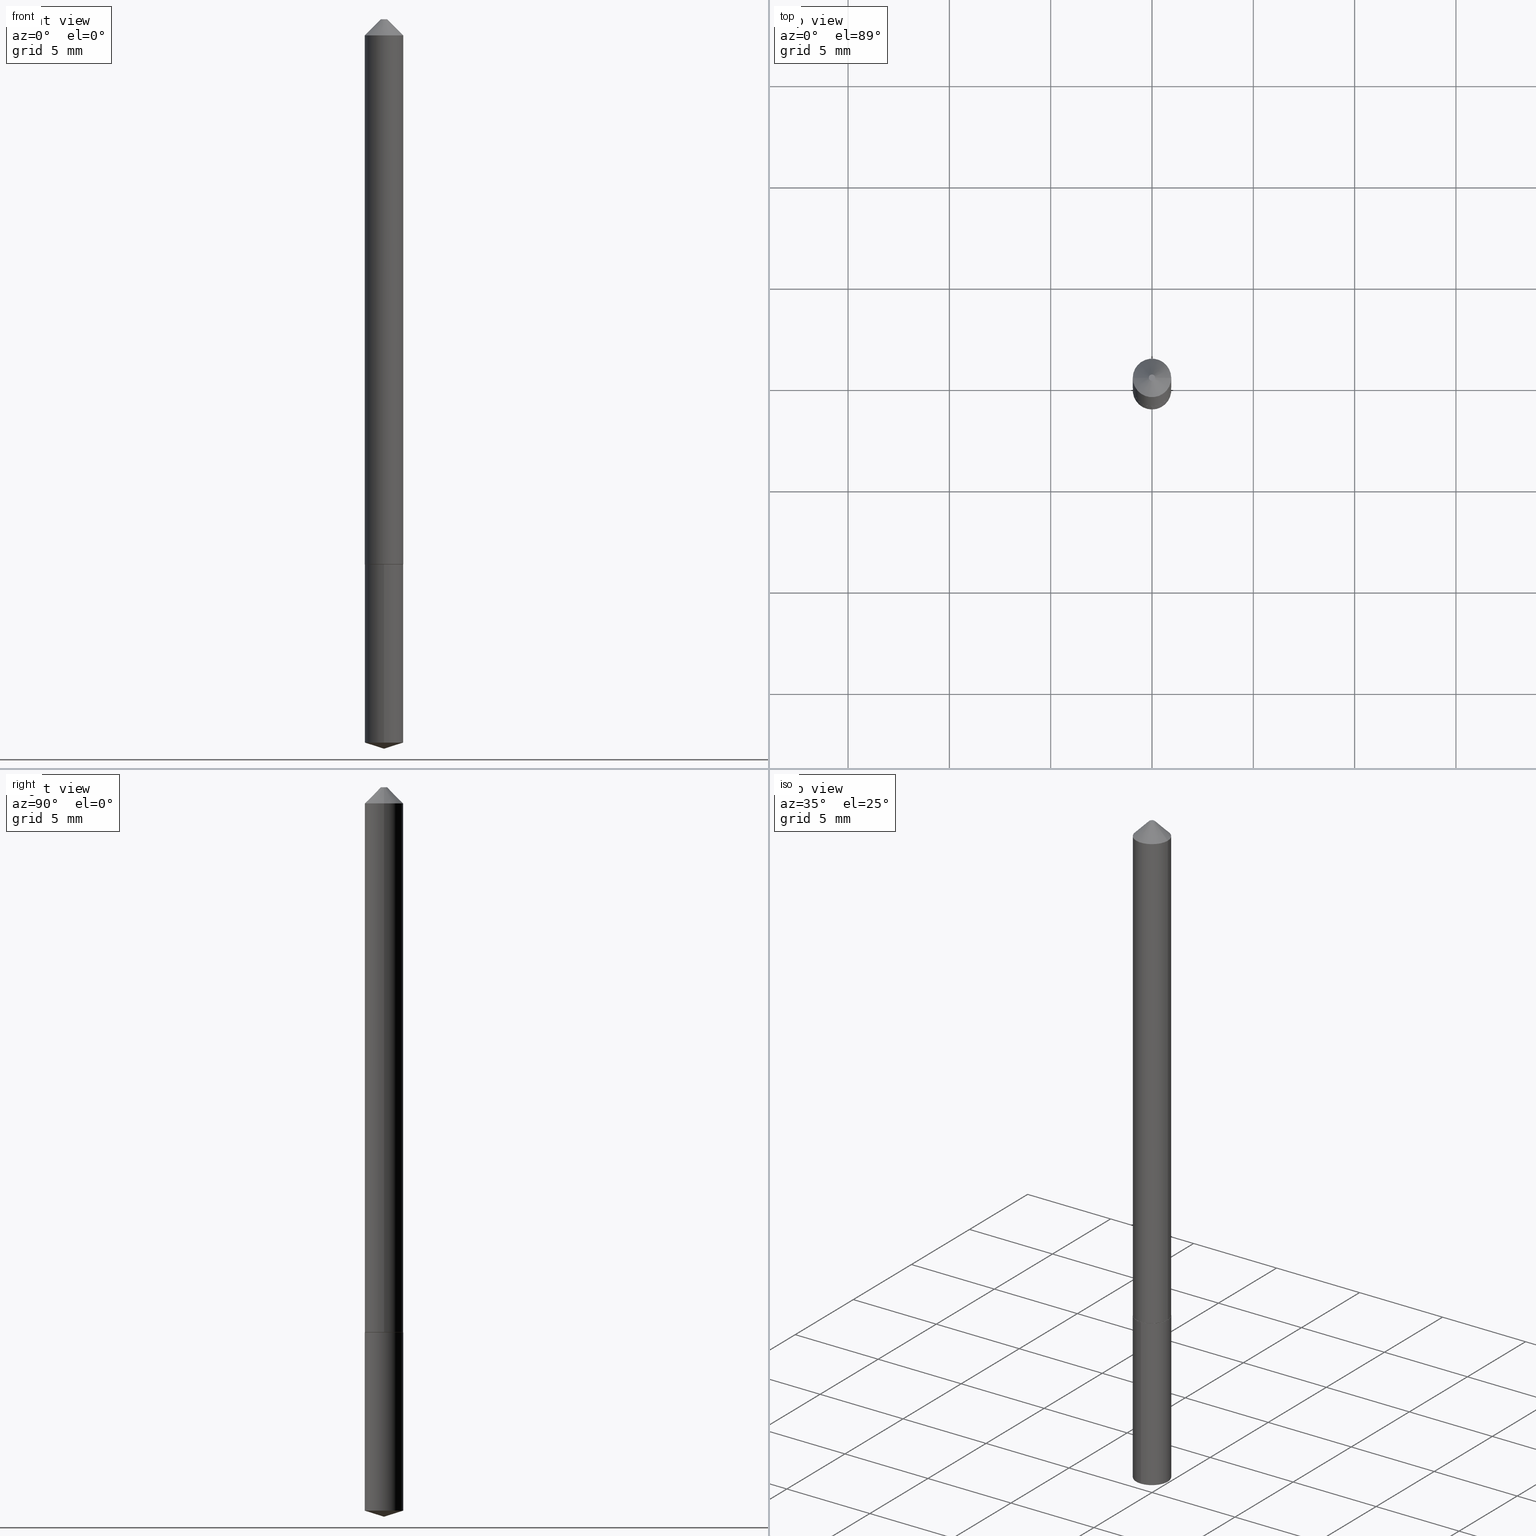
[diagram: canonical four-view strip — front | top / right | iso, engineering-drawing reading convention]
A machine part, canonical four-view strip (front | top / right | iso — engineering-drawing reading convention). The complete STEP part file that produces these views, byte-faithful:
ISO-10303-21;
HEADER;
FILE_DESCRIPTION (( 'STEP AP203' ),
    '1' );
FILE_NAME ('68667.STEP',
    '2024-04-23T13:29:23',
    ( '' ),
    ( '' ),
    'SwSTEP 2.0',
    'SolidWorks 2023',
    '' );
FILE_SCHEMA (( 'CONFIG_CONTROL_DESIGN' ));
ENDSEC;

DATA;
#1 = VECTOR ( 'NONE', #14, 39.37007874015748143 ) ;
#2 = DIRECTION ( 'NONE',  ( -2.445468806185136877E-29, 3.491481338843145188E-15, 1.000000000000000000 ) ) ;
#3 = ORIENTED_EDGE ( 'NONE', *, *, #24, .F. ) ;
#4 = ORIENTED_EDGE ( 'NONE', *, *, #202, .F. ) ;
#5 = EDGE_CURVE ( 'NONE', #232, #212, #334, .T. ) ;
#6 = PERSON_AND_ORGANIZATION_ROLE ( 'classification_officer' ) ;
#7 = FACE_OUTER_BOUND ( 'NONE', #186, .T. ) ;
#8 = APPROVAL_PERSON_ORGANIZATION ( #269, #351, #298 ) ;
#9 = ORIENTED_EDGE ( 'NONE', *, *, #223, .F. ) ;
#10 = AXIS2_PLACEMENT_3D ( 'NONE', #219, #229, #250 ) ;
#11 = ORIENTED_EDGE ( 'NONE', *, *, #385, .F. ) ;
#12 = EDGE_CURVE ( 'NONE', #232, #271, #311, .T. ) ;
#13 = ORIENTED_EDGE ( 'NONE', *, *, #272, .F. ) ;
#14 = DIRECTION ( 'NONE',  ( -2.445349578750907731E-29, 3.491652079314965288E-15, 1.000000000000000000 ) ) ;
#15 = CARTESIAN_POINT ( 'NONE',  ( 7.642090019328601786E-31, -1.091087918388490144E-16, -0.03125000000000020123 ) ) ;
#16 = FACE_OUTER_BOUND ( 'NONE', #40, .T. ) ;
#17 = CARTESIAN_POINT ( 'NONE',  ( 3.437084230371345260E-29, -4.907363506528318895E-15, -1.405507825295926105 ) ) ;
#18 = PRODUCT_RELATED_PRODUCT_CATEGORY ( 'detail', '', ( #20 ) ) ;
#19 = CARTESIAN_POINT ( 'NONE',  ( 2.588528731346966904E-29, -3.695732997165469783E-15, -1.058499999999999996 ) ) ;
#20 = PRODUCT ( '68667', '68667', '', ( #235 ) ) ;
#21 = DIRECTION ( 'NONE',  ( -2.445349578750907731E-29, 3.491652079314965682E-15, 1.000000000000000000 ) ) ;
#22 = FACE_OUTER_BOUND ( 'NONE', #94, .T. ) ;
#23 = DATE_AND_TIME ( #128, #148 ) ;
#24 = EDGE_CURVE ( 'NONE', #41, #289, #222, .T. ) ;
#25 = DIRECTION ( 'NONE',  ( -0.7071067811865452413, 2.468850131082233000E-15, -0.7071067811865497932 ) ) ;
#26 = CARTESIAN_POINT ( 'NONE',  ( 2.589751465750059705E-29, -3.697478737834891287E-15, -1.058999999999999941 ) ) ;
#27 = EDGE_CURVE ( 'NONE', #212, #271, #380, .T. ) ;
#28 = ORIENTED_EDGE ( 'NONE', *, *, #12, .T. ) ;
#29 = AXIS2_PLACEMENT_3D ( 'NONE', #367, #61, #123 ) ;
#30 = MANIFOLD_SOLID_BREP ( 'Body-Move/Copy2[2]', #170 ) ;
#31 = ADVANCED_FACE ( 'NONE', ( #136 ), #140, .T. ) ;
#32 = CIRCLE ( 'NONE', #108, 0.03739999999999999575 ) ;
#33 = FACE_OUTER_BOUND ( 'NONE', #130, .T. ) ;
#34 = ORIENTED_EDGE ( 'NONE', *, *, #138, .T. ) ;
#35 = APPROVAL_DATE_TIME ( #301, #351 ) ;
#36 = CARTESIAN_POINT ( 'NONE',  ( -9.280768524281765548E-28, 1.325180796180113527E-13, 37.95277874015748409 ) ) ;
#37 = ORIENTED_EDGE ( 'NONE', *, *, #5, .T. ) ;
#38 = CARTESIAN_POINT ( 'NONE',  ( 3.465793957963661229E-29, -4.948718492013100408E-15, -1.417300000000000004 ) ) ;
#39 = PRODUCT_DEFINITION_FORMATION_WITH_SPECIFIED_SOURCE ( 'ANY', '', #20, .NOT_KNOWN. ) ;
#40 = EDGE_LOOP ( 'NONE', ( #95, #9, #274, #70 ) ) ;
#41 = VERTEX_POINT ( 'NONE', #286 ) ;
#42 = ORIENTED_EDGE ( 'NONE', *, *, #326, .T. ) ;
#43 = CIRCLE ( 'NONE', #52, 0.03690000000000009245 ) ;
#44 = LINE ( 'NONE', #83, #1 ) ;
#45 = CC_DESIGN_APPROVAL ( #351, ( #125 ) ) ;
#46 = DIRECTION ( 'NONE',  ( -6.982962677686265922E-15, -1.000000000000000000, 0.000000000000000000 ) ) ;
#47 = DIRECTION ( 'NONE',  ( -1.000000000000000000, 6.982962677686266711E-15, 0.000000000000000000 ) ) ;
#48 = CC_DESIGN_DATE_AND_TIME_ASSIGNMENT ( #49, #137, ( #125 ) ) ;
#49 = DATE_AND_TIME ( #273, #203 ) ;
#50 = CARTESIAN_POINT ( 'NONE',  ( -2.919964657261593174E-48, 4.168935659749548932E-34, 1.194030629168669478E-19 ) ) ;
#51 = CARTESIAN_POINT ( 'NONE',  ( 2.589751465750059705E-29, -3.697478737834891287E-15, -1.058999999999999941 ) ) ;
#52 = AXIS2_PLACEMENT_3D ( 'NONE', #382, #350, #166 ) ;
#53 = LOCAL_TIME ( 9, 29, 23.00000000000000000, #361 ) ;
#54 = DATE_AND_TIME ( #78, #290 ) ;
#55 = DIRECTION ( 'NONE',  ( -2.445349578750907731E-29, 3.491652079314965682E-15, 1.000000000000000000 ) ) ;
#56 = CARTESIAN_POINT ( 'NONE',  ( -0.03740000000000000269, 1.520540123066173982E-16, -0.03125000000000020123 ) ) ;
#57 = CIRCLE ( 'NONE', #139, 0.03740000000000000269 ) ;
#58 = EDGE_CURVE ( 'NONE', #271, #212, #32, .T. ) ;
#59 = ORIENTED_EDGE ( 'NONE', *, *, #102, .F. ) ;
#60 = PERSON_AND_ORGANIZATION ( #375, #164 ) ;
#61 = DIRECTION ( 'NONE',  ( 0.000000000000000000, 0.000000000000000000, 1.000000000000000000 ) ) ;
#62 = ORIENTED_EDGE ( 'NONE', *, *, #201, .F. ) ;
#63 = PERSON_AND_ORGANIZATION_ROLE ( 'design_owner' ) ;
#64 = ADVANCED_FACE ( 'NONE', ( #251 ), #320, .T. ) ;
#65 = CARTESIAN_POINT ( 'NONE',  ( 5.327136254793541416E-29, 2.226120823418634659E-16, -1.058999999999999719 ) ) ;
#66 = EDGE_CURVE ( 'NONE', #212, #185, #44, .T. ) ;
#67 = CARTESIAN_POINT ( 'NONE',  ( 3.466048696004176320E-29, -4.948356863693786343E-15, -1.417300000000000004 ) ) ;
#68 = PERSON_AND_ORGANIZATION ( #375, #164 ) ;
#69 = PERSON_AND_ORGANIZATION ( #375, #164 ) ;
#70 = ORIENTED_EDGE ( 'NONE', *, *, #102, .T. ) ;
#71 = VERTEX_POINT ( 'NONE', #165 ) ;
#72 = CC_DESIGN_PERSON_AND_ORGANIZATION_ASSIGNMENT ( #69, #184, ( #125 ) ) ;
#73 = CARTESIAN_POINT ( 'NONE',  ( 0.03740000000000000269, -3.702715959843154023E-16, -0.03125000000000020123 ) ) ;
#74 = DIRECTION ( 'NONE',  ( -2.445468806185136597E-29, 3.491481338843145583E-15, 1.000000000000000000 ) ) ;
#75 = CC_DESIGN_APPROVAL ( #293, ( #39 ) ) ;
#76 = LINE ( 'NONE', #228, #353 ) ;
#77 = CARTESIAN_POINT ( 'NONE',  ( 2.589751465750059705E-29, -3.697478737834891287E-15, -1.058999999999999941 ) ) ;
#78 = CALENDAR_DATE ( 2024, 23, 4 ) ;
#79 = DIRECTION ( 'NONE',  ( -6.982962677686265922E-15, -1.000000000000000000, 3.652203200085913145E-15 ) ) ;
#80 = DIRECTION ( 'NONE',  ( 1.000000000000000000, -6.982962677686263555E-15, 0.000000000000000000 ) ) ;
#81 = DIRECTION ( 'NONE',  ( 1.000000000000000000, -6.982962677686263555E-15, 0.000000000000000000 ) ) ;
#82 = FACE_OUTER_BOUND ( 'NONE', #129, .T. ) ;
#83 = CARTESIAN_POINT ( 'NONE',  ( 2.657429831743033238E-16, 0.03739999999999630426, -1.059000000000000163 ) ) ;
#84 = AXIS2_PLACEMENT_3D ( 'NONE', #199, #287, #105 ) ;
#85 = CARTESIAN_POINT ( 'NONE',  ( -5.839929314523186348E-48, 8.337871319499097864E-34, 2.388061258337338955E-19 ) ) ;
#86 = UNCERTAINTY_MEASURE_WITH_UNIT (LENGTH_MEASURE( 1.000000000000000082E-05 ), #324, 'distance_accuracy_value', 'NONE');
#87 = ORIENTED_EDGE ( 'NONE', *, *, #201, .T. ) ;
#88 = DIRECTION ( 'NONE',  ( -2.445349578750907731E-29, 3.491652079314965682E-15, 1.000000000000000000 ) ) ;
#89 = APPROVAL_DATE_TIME ( #54, #370 ) ;
#90 = CARTESIAN_POINT ( 'NONE',  ( 0.03740000000000000269, -3.656914169555043632E-16, -0.03125000000000020123 ) ) ;
#91 = SECURITY_CLASSIFICATION ( '', '', #297 ) ;
#92 = CC_DESIGN_PERSON_AND_ORGANIZATION_ASSIGNMENT ( #215, #327, ( #39 ) ) ;
#93 = FACE_OUTER_BOUND ( 'NONE', #371, .T. ) ;
#94 = EDGE_LOOP ( 'NONE', ( #338, #267 ) ) ;
#95 = ORIENTED_EDGE ( 'NONE', *, *, #288, .F. ) ;
#96 = ORIENTED_EDGE ( 'NONE', *, *, #24, .T. ) ;
#97 = CARTESIAN_POINT ( 'NONE',  ( -2.611628041454319369E-16, -0.03740000000000490155, -1.405507825295926105 ) ) ;
#98 = EDGE_LOOP ( 'NONE', ( #161, #214, #62, #4 ) ) ;
#99 = AXIS2_PLACEMENT_3D ( 'NONE', #192, #230, #343 ) ;
#100 = ORIENTED_EDGE ( 'NONE', *, *, #263, .T. ) ;
#101 = DIRECTION ( 'NONE',  ( 1.000000000000000000, -6.982962677686266711E-15, 0.000000000000000000 ) ) ;
#102 = EDGE_CURVE ( 'NONE', #71, #175, #118, .T. ) ;
#103 = FACE_OUTER_BOUND ( 'NONE', #276, .T. ) ;
#104 = PERSON_AND_ORGANIZATION ( #375, #164 ) ;
#105 = DIRECTION ( 'NONE',  ( 1.000000000000000000, -6.982962677686263555E-15, 0.000000000000000000 ) ) ;
#106 = DIRECTION ( 'NONE',  ( 1.000000000000000000, -6.982962677686263555E-15, 0.000000000000000000 ) ) ;
#107 = CARTESIAN_POINT ( 'NONE',  ( -0.03740000000000013453, -3.429990013991191210E-15, -1.058499999999999996 ) ) ;
#108 = AXIS2_PLACEMENT_3D ( 'NONE', #171, #317, #348 ) ;
#109 = DIRECTION ( 'NONE',  ( 2.445468806185136597E-29, -3.491481338843145583E-15, -1.000000000000000000 ) ) ;
#110 = AXIS2_PLACEMENT_3D ( 'NONE', #65, #180, #253 ) ;
#111 = CARTESIAN_POINT ( 'NONE',  ( -0.03690000000000009245, -3.432639241165302411E-15, -1.058999999999999719 ) ) ;
#112 = CARTESIAN_POINT ( 'NONE',  ( -0.03740000000000013453, -3.429990013991191210E-15, -1.058499999999999996 ) ) ;
#113 = CYLINDRICAL_SURFACE ( 'NONE', #99, 0.03740000000000007208 ) ;
#114 = DIRECTION ( 'NONE',  ( 1.000000000000000000, -6.982962677686266711E-15, 0.000000000000000000 ) ) ;
#115 = PERSON_AND_ORGANIZATION ( #375, #164 ) ;
#116 = AXIS2_PLACEMENT_3D ( 'NONE', #295, #302, #106 ) ;
#117 = ORIENTED_EDGE ( 'NONE', *, *, #272, .T. ) ;
#118 = CIRCLE ( 'NONE', #306, 0.03740000000000000269 ) ;
#119 = VECTOR ( 'NONE', #378, 39.37007874015748143 ) ;
#120 = EDGE_CURVE ( 'NONE', #175, #71, #57, .T. ) ;
#121 = DIRECTION ( 'NONE',  ( -2.445468806185136597E-29, 3.491481338843145583E-15, 1.000000000000000000 ) ) ;
#122 = ORIENTED_EDGE ( 'NONE', *, *, #288, .T. ) ;
#123 = DIRECTION ( 'NONE',  ( 1.000000000000000000, 0.000000000000000000, 0.000000000000000000 ) ) ;
#124 = ORIENTED_EDGE ( 'NONE', *, *, #120, .F. ) ;
#125 = PRODUCT_DEFINITION ( 'UNKNOWN', '', #39, #299 ) ;
#126 = CIRCLE ( 'NONE', #158, 0.03740000000000000269 ) ;
#127 = VERTEX_POINT ( 'NONE', #278 ) ;
#128 = CALENDAR_DATE ( 2024, 23, 4 ) ;
#129 = EDGE_LOOP ( 'NONE', ( #360, #237, #3, #179 ) ) ;
#130 = EDGE_LOOP ( 'NONE', ( #308, #207 ) ) ;
#131 = APPROVAL_ROLE ( '' ) ;
#132 = CIRCLE ( 'NONE', #291, 0.03740000000000000269 ) ;
#133 = AXIS2_PLACEMENT_3D ( 'NONE', #143, #257, #80 ) ;
#134 = CARTESIAN_POINT ( 'NONE',  ( 7.642090019328601786E-31, -1.091087918388490144E-16, -0.03125000000000020123 ) ) ;
#135 = DIRECTION ( 'NONE',  ( -6.659769872151635244E-15, -0.9537169507482271547, 0.3007057995042720644 ) ) ;
#136 = FACE_OUTER_BOUND ( 'NONE', #98, .T. ) ;
#137 = DATE_TIME_ROLE ( 'creation_date' ) ;
#138 = EDGE_CURVE ( 'NONE', #304, #242, #195, .T. ) ;
#139 = AXIS2_PLACEMENT_3D ( 'NONE', #134, #281, #114 ) ;
#140 = CYLINDRICAL_SURFACE ( 'NONE', #345, 0.03739999999999999575 ) ;
#141 = CONICAL_SURFACE ( 'NONE', #342, 124.8659371009158576, 1.265363707695893458 ) ;
#142 = DIRECTION ( 'NONE',  ( -6.982962677686265922E-15, -1.000000000000000000, 3.652203200085913934E-15 ) ) ;
#143 = CARTESIAN_POINT ( 'NONE',  ( 2.588528731346966904E-29, -3.695732997165469783E-15, -1.058499999999999996 ) ) ;
#144 = EDGE_CURVE ( 'NONE', #242, #304, #43, .T. ) ;
#145 = CONICAL_SURFACE ( 'NONE', #133, 0.03740000000000013453, 0.7853981633975933851 ) ;
#146 = CALENDAR_DATE ( 2024, 23, 4 ) ;
#147 = AXIS2_PLACEMENT_3D ( 'NONE', #15, #109, #47 ) ;
#148 = LOCAL_TIME ( 9, 29, 23.00000000000000000, #240 ) ;
#149 = CARTESIAN_POINT ( 'NONE',  ( -2.611628041454404664E-16, -0.03740000000000370112, -1.058999999999999719 ) ) ;
#150 = APPLICATION_PROTOCOL_DEFINITION ( 'international standard', 'config_control_design', 1994, #339 ) ;
#151 = EDGE_CURVE ( 'NONE', #304, #289, #322, .T. ) ;
#152 = CARTESIAN_POINT ( 'NONE',  ( -5.839929314523186348E-48, 8.337871319499097864E-34, 2.388061258337338955E-19 ) ) ;
#153 = ORIENTED_EDGE ( 'NONE', *, *, #303, .F. ) ;
#154 = PLANE ( 'NONE',  #110 ) ;
#155 = ORIENTED_EDGE ( 'NONE', *, *, #275, .T. ) ;
#156 = DATE_AND_TIME ( #146, #262 ) ;
#157 = AXIS2_PLACEMENT_3D ( 'NONE', #51, #21, #142 ) ;
#158 = AXIS2_PLACEMENT_3D ( 'NONE', #77, #88, #198 ) ;
#159 = EDGE_LOOP ( 'NONE', ( #366, #28, #356 ) ) ;
#160 = COORDINATED_UNIVERSAL_TIME_OFFSET ( 5, 0, .BEHIND. ) ;
#161 = ORIENTED_EDGE ( 'NONE', *, *, #58, .T. ) ;
#162 = ORIENTED_EDGE ( 'NONE', *, *, #27, .T. ) ;
#163 = AXIS2_PLACEMENT_3D ( 'NONE', #225, #168, #173 ) ;
#164 = ORGANIZATION ( 'UNSPECIFIED', 'UNSPECIFIED', '' ) ;
#165 = CARTESIAN_POINT ( 'NONE',  ( -0.03740000000000000269, -1.636677911327879883E-15, -0.03125000000000020123 ) ) ;
#166 = DIRECTION ( 'NONE',  ( 1.000000000000000000, -6.982962677686270655E-15, 0.000000000000000000 ) ) ;
#167 = APPROVAL_ROLE ( '' ) ;
#168 = DIRECTION ( 'NONE',  ( -2.445349578750907731E-29, 3.491652079314965682E-15, 1.000000000000000000 ) ) ;
#169 = CC_DESIGN_DATE_AND_TIME_ASSIGNMENT ( #23, #319, ( #91 ) ) ;
#170 = CLOSED_SHELL ( 'NONE', ( #174, #197, #325, #244, #318, #310, #234, #321 ) ) ;
#171 = CARTESIAN_POINT ( 'NONE',  ( 3.437084230371345260E-29, -4.907363506528318895E-15, -1.405507825295926105 ) ) ;
#172 = AXIS2_PLACEMENT_3D ( 'NONE', #50, #221, #323 ) ;
#173 = DIRECTION ( 'NONE',  ( -6.982962677686266711E-15, -1.000000000000000000, 3.500519750498682344E-15 ) ) ;
#174 = ADVANCED_FACE ( 'NONE', ( #227 ), #261, .T. ) ;
#175 = VERTEX_POINT ( 'NONE', #73 ) ;
#176 = APPROVAL_STATUS ( 'not_yet_approved' ) ;
#177 = AXIS2_PLACEMENT_3D ( 'NONE', #211, #368, #238 ) ;
#178 = ADVANCED_FACE ( 'NONE', ( #376 ), #249, .T. ) ;
#179 = ORIENTED_EDGE ( 'NONE', *, *, #326, .F. ) ;
#180 = DIRECTION ( 'NONE',  ( -2.438088387897960049E-29, 3.491481338843145188E-15, 1.000000000000000000 ) ) ;
#181 = ORIENTED_EDGE ( 'NONE', *, *, #202, .T. ) ;
#182 = DIRECTION ( 'NONE',  ( 6.776566513254261293E-15, 0.9537169507482292641, 0.3007057995042654586 ) ) ;
#183 = VECTOR ( 'NONE', #254, 39.37007874015748854 ) ;
#184 = PERSON_AND_ORGANIZATION_ROLE ( 'creator' ) ;
#185 = VERTEX_POINT ( 'NONE', #187 ) ;
#186 = EDGE_LOOP ( 'NONE', ( #87, #305 ) ) ;
#187 = CARTESIAN_POINT ( 'NONE',  ( 2.657429831743119027E-16, 0.03739999999999631120, -1.059000000000000163 ) ) ;
#188 = VECTOR ( 'NONE', #135, 39.37007874015748854 ) ;
#189 = AXIS2_PLACEMENT_3D ( 'NONE', #26, #280, #233 ) ;
#190 = FACE_OUTER_BOUND ( 'NONE', #264, .T. ) ;
#191 = DIRECTION ( 'NONE',  ( -6.982962677686265922E-15, -1.000000000000000000, 3.652203200085913934E-15 ) ) ;
#192 = CARTESIAN_POINT ( 'NONE',  ( 0.000000000000000000, 0.000000000000000000, 0.000000000000000000 ) ) ;
#193 = DIRECTION ( 'NONE',  ( -2.445468806185136597E-29, 3.491481338843145583E-15, 1.000000000000000000 ) ) ;
#194 = DIRECTION ( 'NONE',  ( 1.000000000000000000, -6.982962677686266711E-15, 4.876258493904629088E-29 ) ) ;
#195 = CIRCLE ( 'NONE', #10, 0.03690000000000009245 ) ;
#196 = CARTESIAN_POINT ( 'NONE',  ( 7.642090019328601786E-31, -1.091087918388490144E-16, -0.03125000000000020123 ) ) ;
#197 = ADVANCED_FACE ( 'NONE', ( #103 ), #220, .T. ) ;
#198 = DIRECTION ( 'NONE',  ( -6.982962677686265922E-15, -1.000000000000000000, 3.652203200085913145E-15 ) ) ;
#199 = CARTESIAN_POINT ( 'NONE',  ( 2.588528731346966904E-29, -3.695732997165469783E-15, -1.058499999999999996 ) ) ;
#200 = SHAPE_DEFINITION_REPRESENTATION ( #277, #292 ) ;
#201 = EDGE_CURVE ( 'NONE', #246, #185, #132, .T. ) ;
#202 = EDGE_CURVE ( 'NONE', #271, #246, #365, .T. ) ;
#203 = LOCAL_TIME ( 9, 29, 23.00000000000000000, #160 ) ;
#204 = PERSON_AND_ORGANIZATION ( #375, #164 ) ;
#205 = CC_DESIGN_PERSON_AND_ORGANIZATION_ASSIGNMENT ( #60, #6, ( #91 ) ) ;
#206 = DIRECTION ( 'NONE',  ( -2.445349578750907731E-29, 3.491652079314965682E-15, 1.000000000000000000 ) ) ;
#207 = ORIENTED_EDGE ( 'NONE', *, *, #138, .F. ) ;
#208 = CIRCLE ( 'NONE', #337, 0.006150000000000001819 ) ;
#209 = APPROVAL_DATE_TIME ( #156, #293 ) ;
#210 =( GEOMETRIC_REPRESENTATION_CONTEXT ( 3 ) GLOBAL_UNCERTAINTY_ASSIGNED_CONTEXT ( ( #86 ) ) GLOBAL_UNIT_ASSIGNED_CONTEXT ( ( #324, #377, #252 ) ) REPRESENTATION_CONTEXT ( 'NONE', 'WORKASPACE' ) );
#211 = CARTESIAN_POINT ( 'NONE',  ( 7.642090019328601786E-31, -1.091087918388490144E-16, -0.03125000000000020123 ) ) ;
#212 = VERTEX_POINT ( 'NONE', #236 ) ;
#213 = DIRECTION ( 'NONE',  ( -2.445349578750907731E-29, 3.491652079314965288E-15, 1.000000000000000000 ) ) ;
#214 = ORIENTED_EDGE ( 'NONE', *, *, #66, .T. ) ;
#215 = PERSON_AND_ORGANIZATION ( #375, #164 ) ;
#216 = CALENDAR_DATE ( 2024, 23, 4 ) ;
#217 = ORIENTED_EDGE ( 'NONE', *, *, #275, .F. ) ;
#218 = ORIENTED_EDGE ( 'NONE', *, *, #151, .F. ) ;
#219 = CARTESIAN_POINT ( 'NONE',  ( 2.589751465750059145E-29, -3.697478737834890498E-15, -1.058999999999999719 ) ) ;
#220 = CYLINDRICAL_SURFACE ( 'NONE', #372, 0.03740000000000007208 ) ;
#221 = DIRECTION ( 'NONE',  ( 2.438088387897960049E-29, -3.491481338843145188E-15, -1.000000000000000000 ) ) ;
#222 = CIRCLE ( 'NONE', #284, 0.03740000000000013453 ) ;
#223 = EDGE_CURVE ( 'NONE', #336, #127, #208, .T. ) ;
#224 = VECTOR ( 'NONE', #2, 39.37007874015748143 ) ;
#225 = CARTESIAN_POINT ( 'NONE',  ( -9.280768524281765548E-28, 1.325180796180113527E-13, 37.95277874015748409 ) ) ;
#226 = FACE_OUTER_BOUND ( 'NONE', #248, .T. ) ;
#227 = FACE_OUTER_BOUND ( 'NONE', #309, .T. ) ;
#228 = CARTESIAN_POINT ( 'NONE',  ( 0.03740000000000013453, -3.956895801310936972E-15, -1.058499999999999996 ) ) ;
#229 = DIRECTION ( 'NONE',  ( -2.445468806185136597E-29, 3.491481338843145583E-15, 1.000000000000000000 ) ) ;
#230 = DIRECTION ( 'NONE',  ( -2.445468806185136597E-29, 3.491481338843145583E-15, 1.000000000000000000 ) ) ;
#231 = PLANE ( 'NONE',  #189 ) ;
#232 = VERTEX_POINT ( 'NONE', #38 ) ;
#233 = DIRECTION ( 'NONE',  ( 6.982962677686265922E-15, 1.000000000000000000, -3.491652079314965288E-15 ) ) ;
#234 = ADVANCED_FACE ( 'NONE', ( #16 ), #329, .T. ) ;
#235 = MECHANICAL_CONTEXT ( 'NONE', #339, 'mechanical' ) ;
#236 = CARTESIAN_POINT ( 'NONE',  ( 2.657429831743117548E-16, 0.03739999999999508301, -1.405507825295926105 ) ) ;
#237 = ORIENTED_EDGE ( 'NONE', *, *, #151, .T. ) ;
#238 = DIRECTION ( 'NONE',  ( -1.000000000000000000, 6.982962677686266711E-15, 0.000000000000000000 ) ) ;
#239 = ORIENTED_EDGE ( 'NONE', *, *, #263, .F. ) ;
#240 = COORDINATED_UNIVERSAL_TIME_OFFSET ( 5, 0, .BEHIND. ) ;
#241 = CIRCLE ( 'NONE', #388, 0.006150000000000001819 ) ;
#242 = VERTEX_POINT ( 'NONE', #266 ) ;
#243 = APPROVAL_STATUS ( 'not_yet_approved' ) ;
#244 = ADVANCED_FACE ( 'NONE', ( #33 ), #154, .F. ) ;
#245 = CARTESIAN_POINT ( 'NONE',  ( -2.611628041454404171E-16, -0.03740000000000369418, -1.058999999999999719 ) ) ;
#246 = VERTEX_POINT ( 'NONE', #149 ) ;
#247 = APPLICATION_CONTEXT ( 'configuration controlled 3d designs of mechanical parts and assemblies' ) ;
#248 = EDGE_LOOP ( 'NONE', ( #218, #34, #42, #13 ) ) ;
#249 = CONICAL_SURFACE ( 'NONE', #163, 124.8659371009158576, 1.265363707695893458 ) ;
#250 = DIRECTION ( 'NONE',  ( 1.000000000000000000, -6.982962677686270655E-15, 0.000000000000000000 ) ) ;
#251 = FACE_OUTER_BOUND ( 'NONE', #330, .T. ) ;
#252 =( NAMED_UNIT ( * ) SI_UNIT ( $, .STERADIAN. ) SOLID_ANGLE_UNIT ( ) );
#253 = DIRECTION ( 'NONE',  ( 1.000000000000000000, -6.982962677686265922E-15, 4.876176775795935793E-29 ) ) ;
#254 = DIRECTION ( 'NONE',  ( -0.7071067811866500463, 7.493145998870724925E-15, 0.7071067811864448771 ) ) ;
#255 = CARTESIAN_POINT ( 'NONE',  ( 2.589751465750059705E-29, -3.697478737834891287E-15, -1.058999999999999941 ) ) ;
#256 = DIRECTION ( 'NONE',  ( -2.445349578750907731E-29, 3.491652079314965682E-15, 1.000000000000000000 ) ) ;
#257 = DIRECTION ( 'NONE',  ( -2.445468806185136597E-29, 3.491481338843145583E-15, 1.000000000000000000 ) ) ;
#258 = APPROVAL_PERSON_ORGANIZATION ( #104, #293, #131 ) ;
#259 = LINE ( 'NONE', #90, #119 ) ;
#260 = COORDINATED_UNIVERSAL_TIME_OFFSET ( 5, 0, .BEHIND. ) ;
#261 = CONICAL_SURFACE ( 'NONE', #147, 0.03740000000000000269, 0.7853981633974450594 ) ;
#262 = LOCAL_TIME ( 9, 29, 23.00000000000000000, #260 ) ;
#263 = EDGE_CURVE ( 'NONE', #41, #175, #362, .T. ) ;
#264 = EDGE_LOOP ( 'NONE', ( #217, #117, #100, #59 ) ) ;
#265 = APPLICATION_PROTOCOL_DEFINITION ( 'international standard', 'config_control_design', 1994, #247 ) ;
#266 = CARTESIAN_POINT ( 'NONE',  ( 0.03690000000000009245, -3.955150060641514680E-15, -1.058999999999999719 ) ) ;
#267 = ORIENTED_EDGE ( 'NONE', *, *, #385, .T. ) ;
#268 = CONICAL_SURFACE ( 'NONE', #84, 0.03740000000000013453, 0.7853981633975933851 ) ;
#269 = PERSON_AND_ORGANIZATION ( #375, #164 ) ;
#270 = CARTESIAN_POINT ( 'NONE',  ( 0.03740000000000007208, -2.611628041454668440E-16, 1.823690114147683585E-30 ) ) ;
#271 = VERTEX_POINT ( 'NONE', #97 ) ;
#272 = EDGE_CURVE ( 'NONE', #289, #41, #313, .T. ) ;
#273 = CALENDAR_DATE ( 2024, 23, 4 ) ;
#274 = ORIENTED_EDGE ( 'NONE', *, *, #390, .T. ) ;
#275 = EDGE_CURVE ( 'NONE', #289, #71, #331, .T. ) ;
#276 = EDGE_LOOP ( 'NONE', ( #96, #155, #124, #239 ) ) ;
#277 = PRODUCT_DEFINITION_SHAPE ( 'NONE', 'NONE',  #125 ) ;
#278 = CARTESIAN_POINT ( 'NONE',  ( 0.006150000000000001819, -2.039417398208996568E-16, 2.388061258345963269E-19 ) ) ;
#279 = DIRECTION ( 'NONE',  ( 1.000000000000000000, -6.982962677686265922E-15, 4.876176775795935793E-29 ) ) ;
#280 = DIRECTION ( 'NONE',  ( 2.445349578750907451E-29, -3.491652079314965288E-15, -1.000000000000000000 ) ) ;
#281 = DIRECTION ( 'NONE',  ( -2.445468806185136597E-29, 3.491481338843145583E-15, 1.000000000000000000 ) ) ;
#282 = ADVANCED_FACE ( 'NONE', ( #93 ), #141, .T. ) ;
#283 = ADVANCED_FACE ( 'NONE', ( #7 ), #231, .F. ) ;
#284 = AXIS2_PLACEMENT_3D ( 'NONE', #19, #193, #81 ) ;
#285 = APPROVAL_PERSON_ORGANIZATION ( #115, #370, #167 ) ;
#286 = CARTESIAN_POINT ( 'NONE',  ( 0.03740000000000013453, -3.956895801310936972E-15, -1.058499999999999996 ) ) ;
#287 = DIRECTION ( 'NONE',  ( -2.445468806185136597E-29, 3.491481338843145583E-15, 1.000000000000000000 ) ) ;
#288 = EDGE_CURVE ( 'NONE', #127, #175, #259, .T. ) ;
#289 = VERTEX_POINT ( 'NONE', #107 ) ;
#290 = LOCAL_TIME ( 9, 29, 23.00000000000000000, #355 ) ;
#291 = AXIS2_PLACEMENT_3D ( 'NONE', #314, #346, #79 ) ;
#292 = ADVANCED_BREP_SHAPE_REPRESENTATION ( '68667', ( #294, #30, #29 ), #210 ) ;
#293 = APPROVAL ( #381, 'UNSPECIFIED' ) ;
#294 = MANIFOLD_SOLID_BREP ( 'Body-Move/Copy2[1]', #296 ) ;
#295 = CARTESIAN_POINT ( 'NONE',  ( 2.588528731346966904E-29, -3.695732997165469783E-15, -1.058499999999999996 ) ) ;
#296 = CLOSED_SHELL ( 'NONE', ( #31, #282, #178, #64, #283 ) ) ;
#297 = SECURITY_CLASSIFICATION_LEVEL ( 'unclassified' ) ;
#298 = APPROVAL_ROLE ( '' ) ;
#299 = DESIGN_CONTEXT ( 'detailed design', #247, 'design' ) ;
#300 = ORIENTED_EDGE ( 'NONE', *, *, #66, .F. ) ;
#301 = DATE_AND_TIME ( #216, #53 ) ;
#302 = DIRECTION ( 'NONE',  ( -2.445468806185136597E-29, 3.491481338843145583E-15, 1.000000000000000000 ) ) ;
#303 = EDGE_CURVE ( 'NONE', #185, #246, #126, .T. ) ;
#304 = VERTEX_POINT ( 'NONE', #111 ) ;
#305 = ORIENTED_EDGE ( 'NONE', *, *, #303, .T. ) ;
#306 = AXIS2_PLACEMENT_3D ( 'NONE', #196, #383, #101 ) ;
#307 = VECTOR ( 'NONE', #359, 39.37007874015748143 ) ;
#308 = ORIENTED_EDGE ( 'NONE', *, *, #144, .F. ) ;
#309 = EDGE_LOOP ( 'NONE', ( #11, #122, #389, #369 ) ) ;
#310 = ADVANCED_FACE ( 'NONE', ( #190 ), #113, .T. ) ;
#311 = LINE ( 'NONE', #374, #188 ) ;
#312 = VECTOR ( 'NONE', #182, 39.37007874015748854 ) ;
#313 = CIRCLE ( 'NONE', #116, 0.03740000000000013453 ) ;
#314 = CARTESIAN_POINT ( 'NONE',  ( 2.589751465750059705E-29, -3.697478737834891287E-15, -1.058999999999999941 ) ) ;
#315 = DIRECTION ( 'NONE',  ( 0.7071067811866500463, -2.468850131083331095E-15, 0.7071067811864448771 ) ) ;
#316 = CC_DESIGN_PERSON_AND_ORGANIZATION_ASSIGNMENT ( #204, #63, ( #20 ) ) ;
#317 = DIRECTION ( 'NONE',  ( -2.445349578750907731E-29, 3.491652079314965682E-15, 1.000000000000000000 ) ) ;
#318 = ADVANCED_FACE ( 'NONE', ( #226 ), #268, .T. ) ;
#319 = DATE_TIME_ROLE ( 'classification_date' ) ;
#320 = CYLINDRICAL_SURFACE ( 'NONE', #157, 0.03739999999999999575 ) ;
#321 = ADVANCED_FACE ( 'NONE', ( #22 ), #347, .F. ) ;
#322 = LINE ( 'NONE', #112, #183 ) ;
#323 = DIRECTION ( 'NONE',  ( -1.000000000000000000, 6.982962677686265922E-15, -4.876176775795935793E-29 ) ) ;
#324 =( CONVERSION_BASED_UNIT ( 'INCH', #354 ) LENGTH_UNIT ( ) NAMED_UNIT ( #379 ) );
#325 = ADVANCED_FACE ( 'NONE', ( #82 ), #145, .T. ) ;
#326 = EDGE_CURVE ( 'NONE', #242, #41, #76, .T. ) ;
#327 = PERSON_AND_ORGANIZATION_ROLE ( 'creator' ) ;
#328 = DIRECTION ( 'NONE',  ( -6.982962677686266711E-15, -1.000000000000000000, 3.500519750498682344E-15 ) ) ;
#329 = CONICAL_SURFACE ( 'NONE', #177, 0.03740000000000000269, 0.7853981633974450594 ) ;
#330 = EDGE_LOOP ( 'NONE', ( #300, #162, #181, #153 ) ) ;
#331 = LINE ( 'NONE', #344, #307 ) ;
#332 = ORIENTED_EDGE ( 'NONE', *, *, #58, .F. ) ;
#333 = DIRECTION ( 'NONE',  ( 1.000000000000000000, -6.982962677686266711E-15, 4.876258493904629088E-29 ) ) ;
#334 = LINE ( 'NONE', #67, #312 ) ;
#335 = CC_DESIGN_PERSON_AND_ORGANIZATION_ASSIGNMENT ( #68, #358, ( #39 ) ) ;
#336 = VERTEX_POINT ( 'NONE', #349 ) ;
#337 = AXIS2_PLACEMENT_3D ( 'NONE', #152, #121, #333 ) ;
#338 = ORIENTED_EDGE ( 'NONE', *, *, #223, .T. ) ;
#339 = APPLICATION_CONTEXT ( 'configuration controlled 3d designs of mechanical parts and assemblies' ) ;
#340 = CARTESIAN_POINT ( 'NONE',  ( 0.000000000000000000, 0.000000000000000000, 0.000000000000000000 ) ) ;
#341 = AXIS2_PLACEMENT_3D ( 'NONE', #17, #256, #46 ) ;
#342 = AXIS2_PLACEMENT_3D ( 'NONE', #36, #206, #328 ) ;
#343 = DIRECTION ( 'NONE',  ( 1.000000000000000000, -6.982962677686265922E-15, 4.876176775795935793E-29 ) ) ;
#344 = CARTESIAN_POINT ( 'NONE',  ( -0.03740000000000007208, 2.657429831742779816E-16, -1.839681723755338193E-30 ) ) ;
#345 = AXIS2_PLACEMENT_3D ( 'NONE', #255, #55, #191 ) ;
#346 = DIRECTION ( 'NONE',  ( -2.445349578750907731E-29, 3.491652079314965682E-15, 1.000000000000000000 ) ) ;
#347 = PLANE ( 'NONE',  #172 ) ;
#348 = DIRECTION ( 'NONE',  ( -6.982962677686265922E-15, -1.000000000000000000, 0.000000000000000000 ) ) ;
#349 = CARTESIAN_POINT ( 'NONE',  ( -0.006150000000000001819, 9.749961638719398185E-17, 2.388061258332430723E-19 ) ) ;
#350 = DIRECTION ( 'NONE',  ( -2.445468806185136597E-29, 3.491481338843145583E-15, 1.000000000000000000 ) ) ;
#351 = APPROVAL ( #243, 'UNSPECIFIED' ) ;
#352 = LINE ( 'NONE', #56, #363 ) ;
#353 = VECTOR ( 'NONE', #315, 39.37007874015748854 ) ;
#354 = LENGTH_MEASURE_WITH_UNIT ( LENGTH_MEASURE( 0.02539999999999999897 ), #387 );
#355 = COORDINATED_UNIVERSAL_TIME_OFFSET ( 5, 0, .BEHIND. ) ;
#356 = ORIENTED_EDGE ( 'NONE', *, *, #27, .F. ) ;
#357 = CC_DESIGN_APPROVAL ( #370, ( #91 ) ) ;
#358 = PERSON_AND_ORGANIZATION_ROLE ( 'design_supplier' ) ;
#359 = DIRECTION ( 'NONE',  ( -2.445468806185136877E-29, 3.491481338843145188E-15, 1.000000000000000000 ) ) ;
#360 = ORIENTED_EDGE ( 'NONE', *, *, #144, .T. ) ;
#361 = COORDINATED_UNIVERSAL_TIME_OFFSET ( 5, 0, .BEHIND. ) ;
#362 = LINE ( 'NONE', #270, #224 ) ;
#363 = VECTOR ( 'NONE', #25, 39.37007874015748143 ) ;
#364 = ORIENTED_EDGE ( 'NONE', *, *, #12, .F. ) ;
#365 = LINE ( 'NONE', #245, #386 ) ;
#366 = ORIENTED_EDGE ( 'NONE', *, *, #5, .F. ) ;
#367 = CARTESIAN_POINT ( 'NONE',  ( 0.000000000000000000, 0.000000000000000000, 0.000000000000000000 ) ) ;
#368 = DIRECTION ( 'NONE',  ( 2.445468806185136597E-29, -3.491481338843145583E-15, -1.000000000000000000 ) ) ;
#369 = ORIENTED_EDGE ( 'NONE', *, *, #390, .F. ) ;
#370 = APPROVAL ( #176, 'UNSPECIFIED' ) ;
#371 = EDGE_LOOP ( 'NONE', ( #364, #37, #332 ) ) ;
#372 = AXIS2_PLACEMENT_3D ( 'NONE', #340, #74, #279 ) ;
#373 = CC_DESIGN_SECURITY_CLASSIFICATION ( #91, ( #39 ) ) ;
#374 = CARTESIAN_POINT ( 'NONE',  ( 3.465793957963661229E-29, -4.948718492013100408E-15, -1.417300000000000004 ) ) ;
#375 = PERSON ( 'UNSPECIFIED', 'UNSPECIFIED', 'UNSPECIFIED', ('UNSPECIFIED'), ('UNSPECIFIED'), ('UNSPECIFIED') ) ;
#376 = FACE_OUTER_BOUND ( 'NONE', #159, .T. ) ;
#377 =( NAMED_UNIT ( * ) PLANE_ANGLE_UNIT ( ) SI_UNIT ( $, .RADIAN. ) );
#378 = DIRECTION ( 'NONE',  ( 0.7071067811865452413, -7.319954787623248157E-15, -0.7071067811865497932 ) ) ;
#379 = DIMENSIONAL_EXPONENTS ( 1.000000000000000000, 0.000000000000000000, 0.000000000000000000, 0.000000000000000000, 0.000000000000000000, 0.000000000000000000, 0.000000000000000000 ) ;
#380 = CIRCLE ( 'NONE', #341, 0.03739999999999999575 ) ;
#381 = APPROVAL_STATUS ( 'not_yet_approved' ) ;
#382 = CARTESIAN_POINT ( 'NONE',  ( 2.589751465750059145E-29, -3.697478737834890498E-15, -1.058999999999999719 ) ) ;
#383 = DIRECTION ( 'NONE',  ( -2.445468806185136597E-29, 3.491481338843145583E-15, 1.000000000000000000 ) ) ;
#384 = DIRECTION ( 'NONE',  ( -2.445468806185136597E-29, 3.491481338843145583E-15, 1.000000000000000000 ) ) ;
#385 = EDGE_CURVE ( 'NONE', #127, #336, #241, .T. ) ;
#386 = VECTOR ( 'NONE', #213, 39.37007874015748143 ) ;
#387 =( LENGTH_UNIT ( ) NAMED_UNIT ( * ) SI_UNIT ( $, .METRE. ) );
#388 = AXIS2_PLACEMENT_3D ( 'NONE', #85, #384, #194 ) ;
#389 = ORIENTED_EDGE ( 'NONE', *, *, #120, .T. ) ;
#390 = EDGE_CURVE ( 'NONE', #336, #71, #352, .T. ) ;
ENDSEC;
END-ISO-10303-21;
